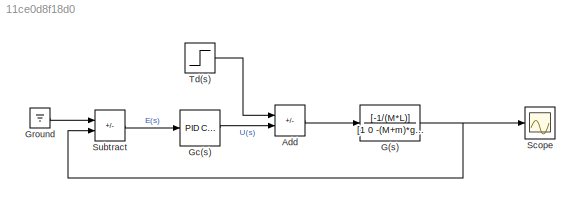
MODEL slx_11ce0d8f18d0
KIND model
CONFIG AbsTol = auto
CONFIG EnableMultiTasking = off
CONFIG FixedStep = auto
CONFIG MaxStep = auto
CONFIG MinStep = auto
CONFIG RelTol = 1e-3
CONFIG SampleTimeConstraint = Unconstrained
CONFIG SolverName = VariableStepAuto
CONFIG StartTime = 0.0
CONFIG StopTime = 60.0
BLOCK [Sum] Add
  IconShape = rectangular
  Inputs = -+
  Ports = [2, 1]
BLOCK [TransferFcn] G(s)
  ContinuousStateAttributes = 'Angular_rotation'
  Denominator = [1 0 -(M+m)*g/(M*L)]
  Numerator = [-1/(M*L)]
BLOCK [Reference] Gc(s)  REF=pid_lib/PID Controller
  Ports = [1, 1]
  SourceBlock = pid_lib/PID Controller
  SourceProductBaseCode = SL
  SourceType = PID 1dof
BLOCK [Ground] Ground
BLOCK [Scope] Scope
  Floating = off
  NumInputPorts = 1
  Ports = [1]
  ScopeSpecificationString = Simulink.scopes.TimeScopeBlockCfg('CurrentConfiguration', extmgr.ConfigurationSet(extmgr.Configuration('Core','General UI',true),extmgr.Configuration('Core','Source UI',true),extmgr.Configuration('Sources','WiredSimulink',true),extmgr.Configuration('Visuals','Time Domain',true,'SerializedDisplays',{struct('MinYLimReal','-0.0007','MaxYLimReal','0.00074','YLabelReal','','MinYLimMag','0.00000','MaxYL...<+1352ch>
BLOCK [Sum] Subtract
  IconShape = rectangular
  Inputs = +-
  Ports = [2, 1]
BLOCK [Step] Td(s)
  After = 0
  Before = 1
  SampleTime = 0
  Time = 0.1
LINE Add:1 -> G(s):1
NET G(s):1 -> Scope:1, Subtract:2
LINE Gc(s):1 -> Add:2
LINE Ground:1 -> Subtract:1
LINE Subtract:1 -> Gc(s):1
LINE Td(s):1 -> Add:1
note: NET lines group one-source signal fan-out (src -> all destinations, sorted); 1:1 wires keep LINE
